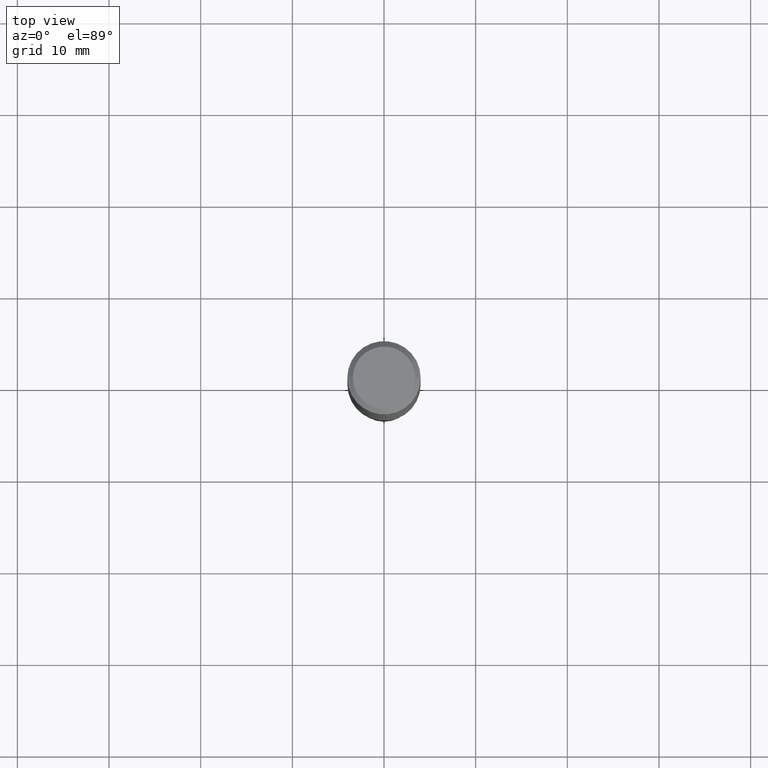
[diagram: clean part render]
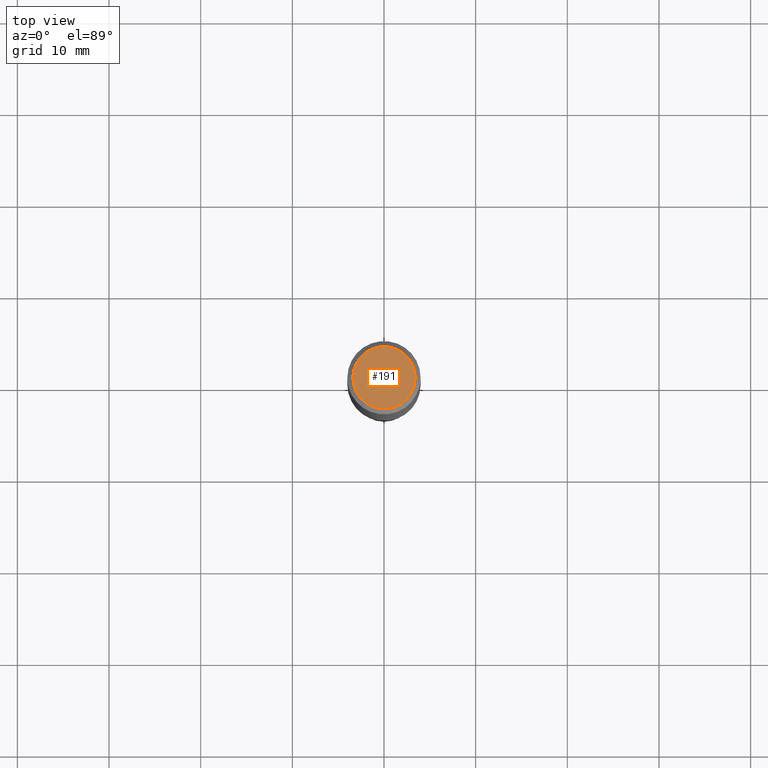
[diagram: same view with one face highlighted and labeled with its STEP entity id]
A machine part, top view. The second image highlights one B-rep face of the part: STEP entity #191.
In plain terms, the highlighted planar face has unit normal (0, -0, -1).
Its self-contained STEP definition (entity closure, byte-faithful):
#6 = CARTESIAN_POINT ( 'NONE',  ( 0.1338749999999999940, -1.040731925365424925E-15, 4.101342130351390035E-18 ) ) ;
#53 = ORIENTED_EDGE ( 'NONE', *, *, #114, .T. ) ;
#65 = ORIENTED_EDGE ( 'NONE', *, *, #377, .T. ) ;
#100 = FACE_OUTER_BOUND ( 'NONE', #444, .T. ) ;
#106 = CARTESIAN_POINT ( 'NONE',  ( -5.014852121625163022E-47, 7.159879756154476955E-33, 2.050671065172241055E-18 ) ) ;
#113 = DIRECTION ( 'NONE',  ( -2.445468806185136597E-29, 3.491481338843145583E-15, 1.000000000000000000 ) ) ;
#114 = EDGE_CURVE ( 'NONE', #181, #311, #297, .T. ) ;
#115 = CARTESIAN_POINT ( 'NONE',  ( -1.002970424325032604E-46, 1.431975951230895391E-32, 4.101342130344482109E-18 ) ) ;
#121 = DIRECTION ( 'NONE',  ( -2.445468806185136597E-29, 3.491481338843145583E-15, 1.000000000000000000 ) ) ;
#175 = AXIS2_PLACEMENT_3D ( 'NONE', #395, #121, #353 ) ;
#176 = PLANE ( 'NONE',  #425 ) ;
#181 = VERTEX_POINT ( 'NONE', #286 ) ;
#187 = DIRECTION ( 'NONE',  ( -1.000000000000000000, 6.982962677686265922E-15, -4.876176775795935793E-29 ) ) ;
#191 = ADVANCED_FACE ( 'NONE', ( #100 ), #176, .F. ) ;
#193 = DIRECTION ( 'NONE',  ( 1.000000000000000000, -6.982962677686266711E-15, 4.876170806578254279E-29 ) ) ;
#286 = CARTESIAN_POINT ( 'NONE',  ( -0.1338749999999999940, 9.760872517903331886E-16, 4.101342130337800673E-18 ) ) ;
#297 = CIRCLE ( 'NONE', #175, 0.1338749999999999940 ) ;
#299 = AXIS2_PLACEMENT_3D ( 'NONE', #115, #113, #193 ) ;
#311 = VERTEX_POINT ( 'NONE', #6 ) ;
#332 = DIRECTION ( 'NONE',  ( 2.438088387897960049E-29, -3.491481338843145188E-15, -1.000000000000000000 ) ) ;
#350 = CIRCLE ( 'NONE', #299, 0.1338749999999999940 ) ;
#353 = DIRECTION ( 'NONE',  ( 1.000000000000000000, -6.982962677686266711E-15, 4.876170806578254279E-29 ) ) ;
#377 = EDGE_CURVE ( 'NONE', #311, #181, #350, .T. ) ;
#395 = CARTESIAN_POINT ( 'NONE',  ( -1.002970424325032604E-46, 1.431975951230895391E-32, 4.101342130344482109E-18 ) ) ;
#425 = AXIS2_PLACEMENT_3D ( 'NONE', #106, #332, #187 ) ;
#444 = EDGE_LOOP ( 'NONE', ( #53, #65 ) ) ;